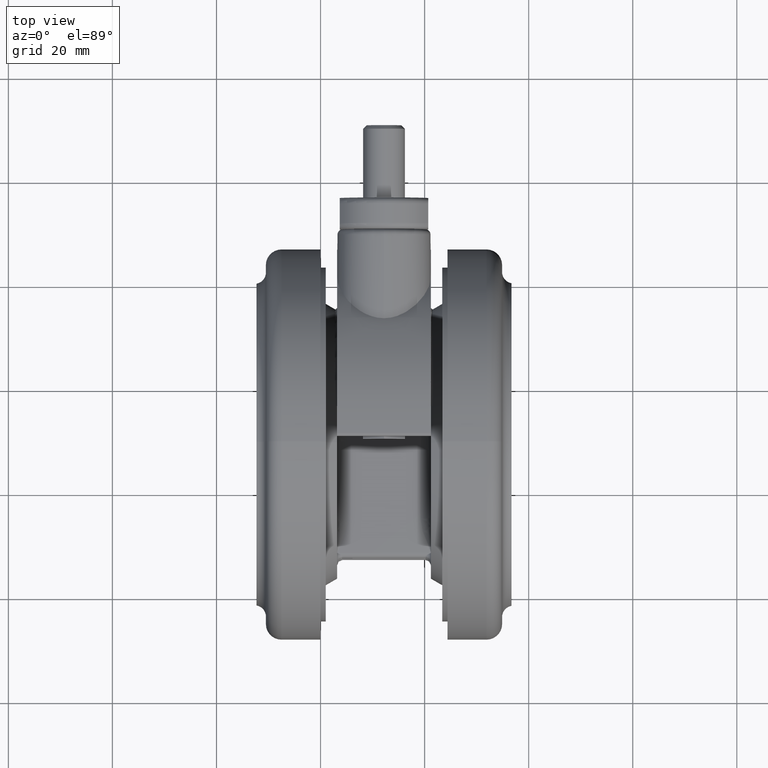
[diagram: clean part render]
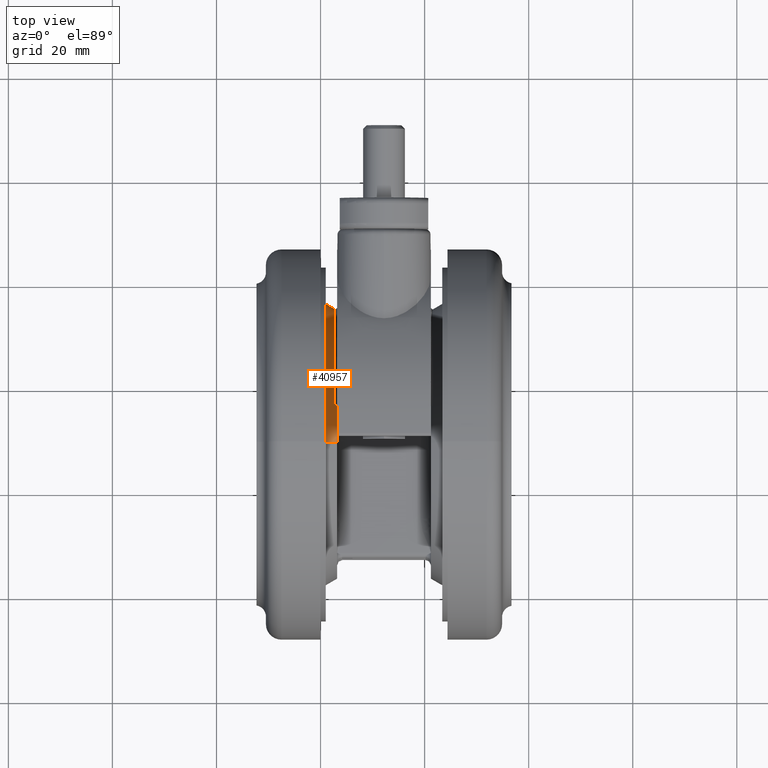
[diagram: same view with one face highlighted and labeled with its STEP entity id]
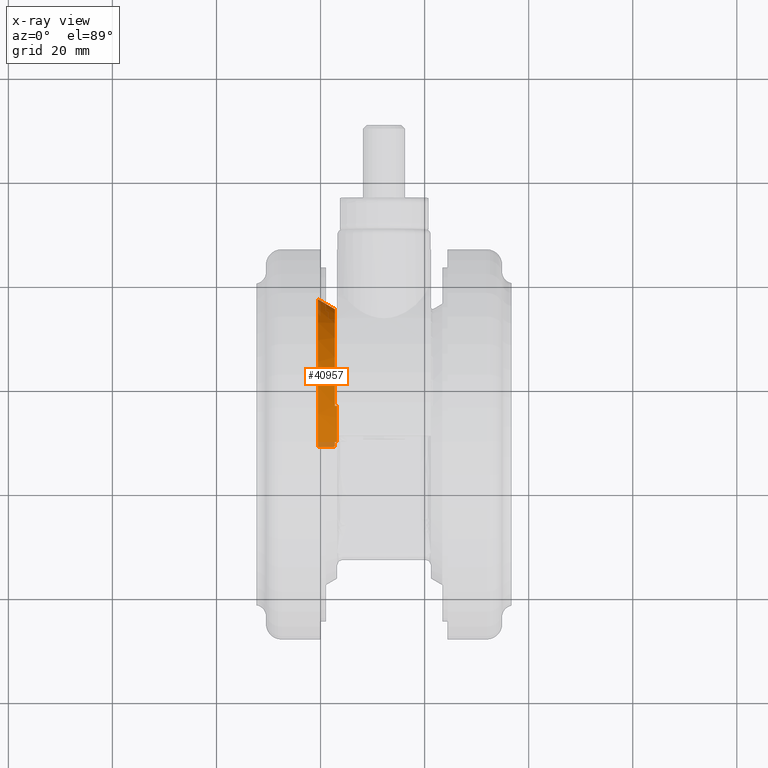
[diagram: x-ray of the same camera — body ghosted, the highlighted face saturated]
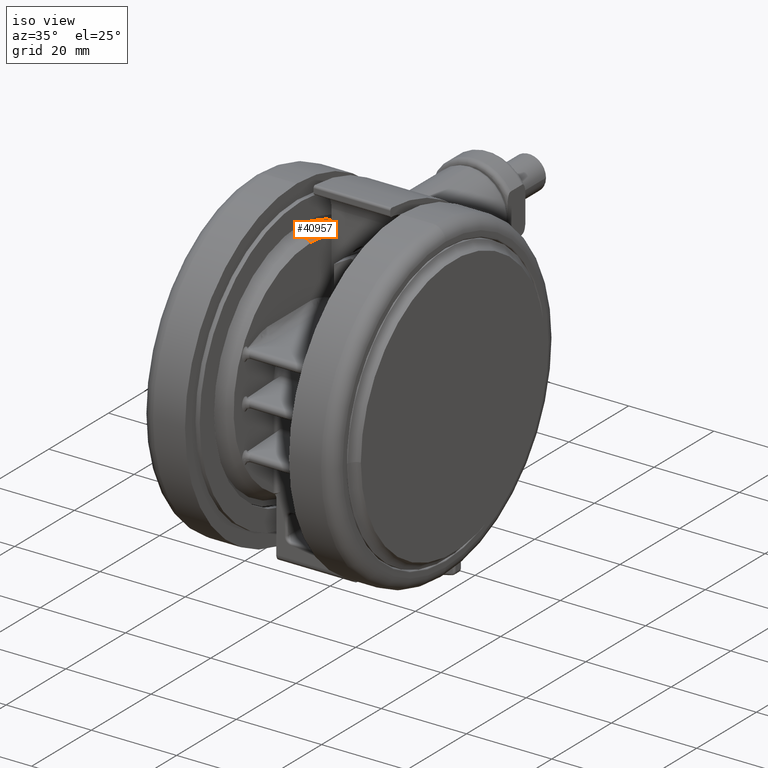
[diagram: same view with one face highlighted and labeled with its STEP entity id]
A machine part, top view. The second image highlights one B-rep face of the part: STEP entity #40957.
The next image is the same camera in x-ray: the body ghosted, the highlighted face saturated — about 5% of this face is hidden behind the body in this view.
A second angle (iso view) of the same face is appended — the face is thin or edge-on in the first view.
In plain terms, the highlighted conical surface has half-angle 30 deg.
Its self-contained STEP definition (entity closure, byte-faithful):
#870 = EDGE_CURVE ( 'NONE', #19113, #3187, #31773, .T. ) ;
#2333 = CARTESIAN_POINT ( 'NONE',  ( -6.999999999999924500, -25.08649046841647100, -33.94999999999994600 ) ) ;
#2921 = B_SPLINE_CURVE_WITH_KNOTS ( 'NONE', 3,
 ( #28315, #46983, #24702, #2333 ),
 .UNSPECIFIED., .F., .F.,
 ( 4, 4 ),
 ( 0.0000000000000000000, 0.0005247024933198872600 ),
 .UNSPECIFIED. ) ;
#3187 = VERTEX_POINT ( 'NONE', #36636 ) ;
#4074 = VERTEX_POINT ( 'NONE', #13653 ) ;
#6224 = VERTEX_POINT ( 'NONE', #43412 ) ;
#6695 = CARTESIAN_POINT ( 'NONE',  ( -7.729317186289102800E-014, 25.78500000000000000, -33.49999999999985100 ) ) ;
#8132 = FACE_OUTER_BOUND ( 'NONE', #44560, .T. ) ;
#9787 = EDGE_CURVE ( 'NONE', #4074, #6224, #46940, .T. ) ;
#10429 = DIRECTION ( 'NONE',  ( -1.498801083243962300E-015, 0.5000000000000007800, -0.8660254037844381500 ) ) ;
#11197 = CARTESIAN_POINT ( 'NONE',  ( 0.0000000000000000000, 0.0000000000000000000, -33.49999999999985100 ) ) ;
#11512 = AXIS2_PLACEMENT_3D ( 'NONE', #40905, #18490, #44702 ) ;
#12407 = DIRECTION ( 'NONE',  ( 1.560033423201329900E-015, -0.5000000000000007800, -0.8660254037844381500 ) ) ;
#13388 = EDGE_CURVE ( 'NONE', #19113, #30581, #15179, .T. ) ;
#13653 = CARTESIAN_POINT ( 'NONE',  ( -7.807197175087654000E-014, 26.04480762113538700, -33.94999999999994600 ) ) ;
#14458 = CARTESIAN_POINT ( 'NONE',  ( 0.0000000000000000000, 0.0000000000000000000, -37.19792847415946800 ) ) ;
#14945 = DIRECTION ( 'NONE',  ( 0.0000000000000000000, -0.0000000000000000000, -1.000000000000000000 ) ) ;
#15179 = CIRCLE ( 'NONE', #42573, 25.78500000000000000 ) ;
#15715 = VERTEX_POINT ( 'NONE', #44987 ) ;
#16160 = DIRECTION ( 'NONE',  ( 0.0000000000000000000, -0.0000000000000000000, -1.000000000000000000 ) ) ;
#16833 = CONICAL_SURFACE ( 'NONE', #30290, 25.78500000000000000, 0.5235987755982995900 ) ;
#18252 = DIRECTION ( 'NONE',  ( 2.997602166487919900E-015, -1.000000000000000000, 0.0000000000000000000 ) ) ;
#18490 = DIRECTION ( 'NONE',  ( -0.0000000000000000000, -0.0000000000000000000, -1.000000000000000000 ) ) ;
#19113 = VERTEX_POINT ( 'NONE', #42689 ) ;
#21755 = VECTOR ( 'NONE', #12407, 1000.000000000000100 ) ;
#22947 = CIRCLE ( 'NONE', #11512, 26.04480762113535200 ) ;
#24141 = ORIENTED_EDGE ( 'NONE', *, *, #13388, .T. ) ;
#24702 = CARTESIAN_POINT ( 'NONE',  ( -6.999999999999924500, -24.99657033459845200, -33.79998443328788900 ) ) ;
#28315 = CARTESIAN_POINT ( 'NONE',  ( -6.999999999999925400, -24.81665217147547200, -33.49999999999985100 ) ) ;
#28788 = EDGE_CURVE ( 'NONE', #30581, #15715, #2921, .T. ) ;
#30290 = AXIS2_PLACEMENT_3D ( 'NONE', #11197, #14945, #40958 ) ;
#30581 = VERTEX_POINT ( 'NONE', #44647 ) ;
#31074 = ORIENTED_EDGE ( 'NONE', *, *, #9787, .T. ) ;
#31773 = LINE ( 'NONE', #38555, #21755 ) ;
#34383 = AXIS2_PLACEMENT_3D ( 'NONE', #14458, #40652, #18252 ) ;
#35217 = ORIENTED_EDGE ( 'NONE', *, *, #41864, .T. ) ;
#36636 = CARTESIAN_POINT ( 'NONE',  ( 8.711226635156226500E-014, -27.92000000000004100, -37.19792847415946800 ) ) ;
#37192 = ORIENTED_EDGE ( 'NONE', *, *, #41233, .F. ) ;
#38445 = ORIENTED_EDGE ( 'NONE', *, *, #28788, .T. ) ;
#38555 = CARTESIAN_POINT ( 'NONE',  ( 8.045092363449246800E-014, -25.78500000000000000, -33.49999999999985100 ) ) ;
#38593 = CARTESIAN_POINT ( 'NONE',  ( 0.0000000000000000000, 0.0000000000000000000, -33.49999999999985100 ) ) ;
#40652 = DIRECTION ( 'NONE',  ( 0.0000000000000000000, -0.0000000000000000000, -1.000000000000000000 ) ) ;
#40905 = CARTESIAN_POINT ( 'NONE',  ( 0.0000000000000000000, 0.0000000000000000000, -33.94999999999994600 ) ) ;
#40957 = ADVANCED_FACE ( 'NONE', ( #8132 ), #16833, .T. ) ;
#40958 = DIRECTION ( 'NONE',  ( -2.997602166487920300E-015, 1.000000000000000000, 0.0000000000000000000 ) ) ;
#41233 = EDGE_CURVE ( 'NONE', #3187, #6224, #46153, .T. ) ;
#41864 = EDGE_CURVE ( 'NONE', #15715, #4074, #22947, .T. ) ;
#42376 = DIRECTION ( 'NONE',  ( 2.997602166487920300E-015, -1.000000000000000000, 0.0000000000000000000 ) ) ;
#42573 = AXIS2_PLACEMENT_3D ( 'NONE', #38593, #16160, #42376 ) ;
#42689 = CARTESIAN_POINT ( 'NONE',  ( 8.045092363449246800E-014, -25.78500000000000000, -33.49999999999985100 ) ) ;
#43412 = CARTESIAN_POINT ( 'NONE',  ( -8.369305248834285500E-014, 27.92000000000004100, -37.19792847415946800 ) ) ;
#44560 = EDGE_LOOP ( 'NONE', ( #45870, #24141, #38445, #35217, #31074, #37192 ) ) ;
#44592 = VECTOR ( 'NONE', #10429, 1000.000000000000100 ) ;
#44647 = CARTESIAN_POINT ( 'NONE',  ( -6.999999999999925400, -24.81665217147547200, -33.49999999999985100 ) ) ;
#44702 = DIRECTION ( 'NONE',  ( -2.997602166487920300E-015, 1.000000000000000000, 0.0000000000000000000 ) ) ;
#44987 = CARTESIAN_POINT ( 'NONE',  ( -6.999999999999924500, -25.08649046841647100, -33.94999999999994600 ) ) ;
#45870 = ORIENTED_EDGE ( 'NONE', *, *, #870, .F. ) ;
#46153 = CIRCLE ( 'NONE', #34383, 27.92000000000000200 ) ;
#46940 = LINE ( 'NONE', #6695, #44592 ) ;
#46983 = CARTESIAN_POINT ( 'NONE',  ( -6.999999999999925400, -24.90662450972926200, -33.64998426274409800 ) ) ;